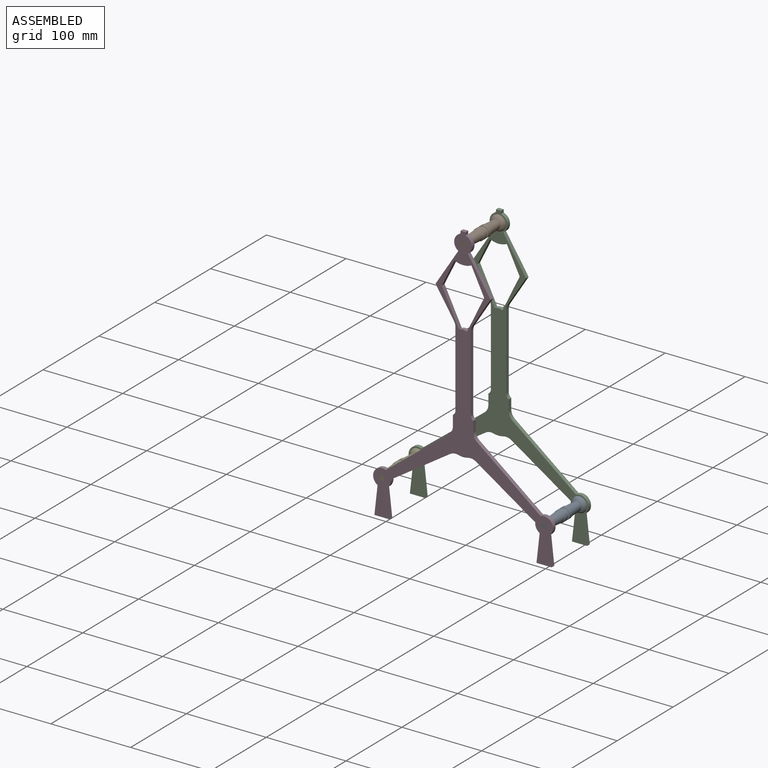
[diagram: assembled view]
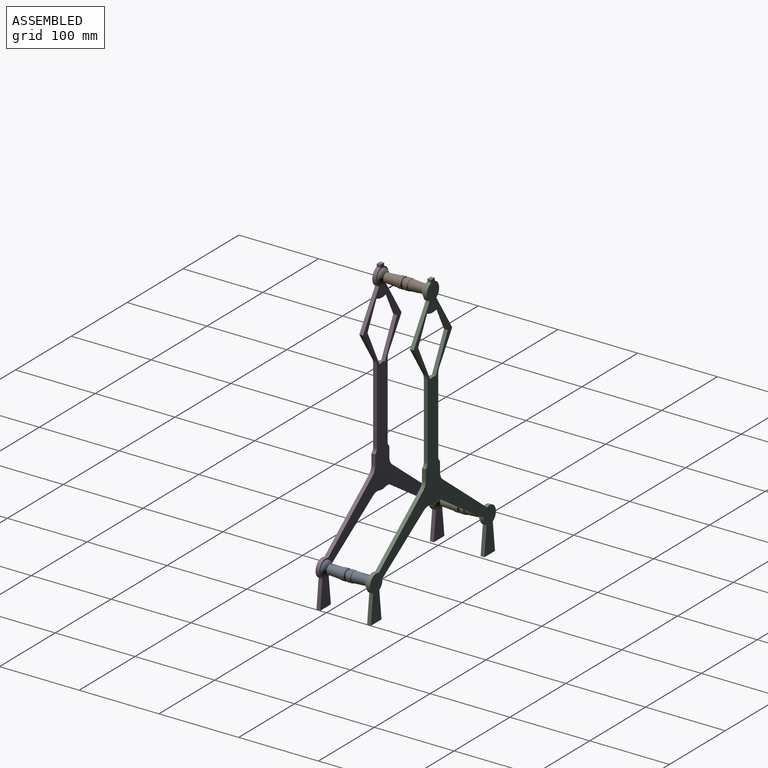
[diagram: assembled view, second angle]
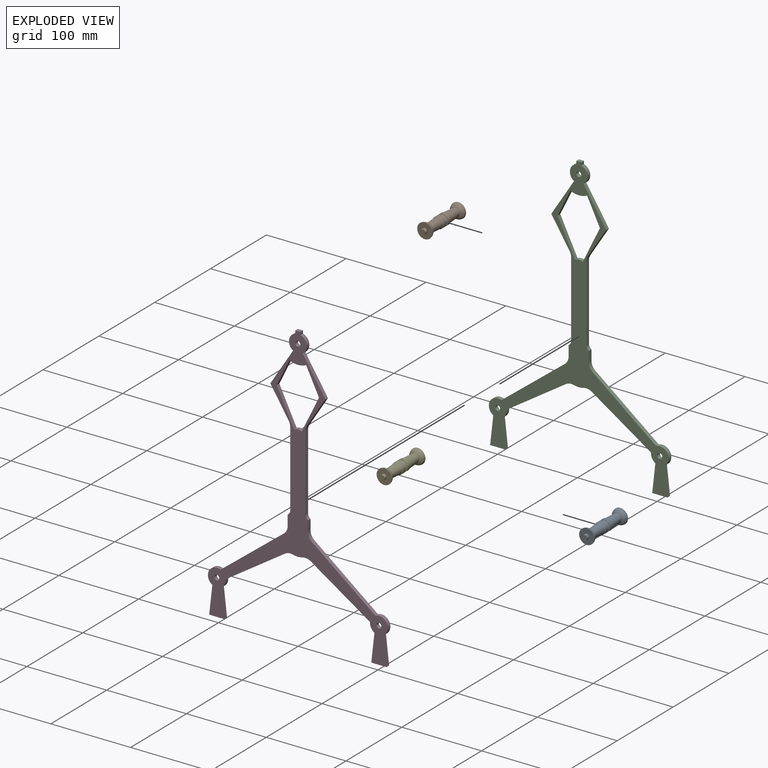
[diagram: exploded view]
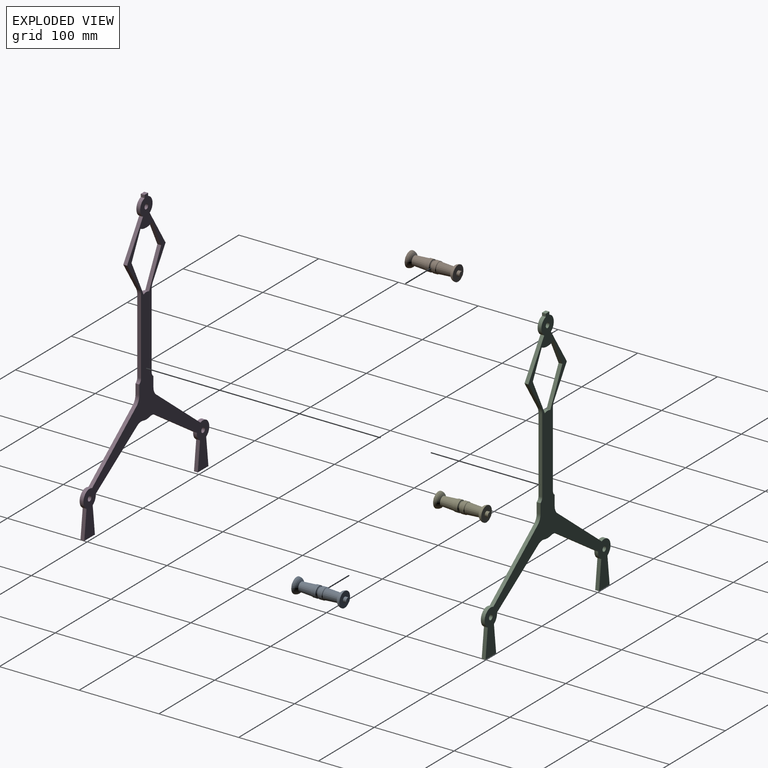
[diagram: exploded view, second angle]
ASSEMBLY  parts=5 mates=2
PART A: 15 faces, bbox 19.1x68.3x19.1 mm
  f0: plane 6.35x6.35mm, normal (0,1,0), area 31.7mm2, adj f1
  f1: cylinder r=3.17mm len=6.35mm, axis (0,-1,0), area 79.2mm2, adj f0,f2
  f2: plane 19.05x19.05mm, normal (0,1,0), area 253.4mm2, adj f1,f3
  f3: torus R=3.17mm, axis (0,-1,0), area 385.2mm2, adj f2,f4
  f4: cone r=6.57mm half-angle=3.4deg, axis (0,-1,0), area 658.7mm2, adj f3,f5
  f5: cone r=7.14mm half-angle=40.3deg, axis (0,-1,0), area 37.9mm2, adj f4,f6
  f6: cylinder r=7.14mm len=14.29mm, axis (0,-1,0), area 213.8mm2, adj f5,f7
  f7: torus R=7.14mm, axis (0,-1,0), area 192.2mm2, adj f6,f8
  f8: cylinder r=7.14mm len=14.29mm, axis (0,-1,0), area 213.8mm2, adj f7,f9
  f9: cone r=7.14mm half-angle=40.3deg, axis (0,1,0), area 37.9mm2, adj f8,f10
  f10: cone r=6.57mm half-angle=3.4deg, axis (0,1,0), area 658.7mm2, adj f9,f11
  f11: torus R=3.17mm, axis (0,-1,0), area 385.2mm2, adj f10,f12
  f12: plane 19.05x19.05mm, normal (0,-1,0), area 253.4mm2, adj f11,f13
  f13: cylinder r=3.17mm len=6.35mm, axis (0,-1,0), area 79.2mm2, adj f12,f14
  f14: plane 6.35x6.35mm, normal (0,-1,0), area 31.7mm2, adj f13
PART B: same geometry as A
PART C: 47 faces, bbox 225.4x4.8x350.8 mm
  f0: cylinder r=23.81mm len=21mm, axis (0,1,0), area 103.6mm2, adj f1,f43,f44,f45
  f1: plane 32.6x16.01mm, normal (-0.9,0,-0.44), area 173mm2, adj f0,f2,f44,f45
  f2: plane 44x21.61mm, normal (-0.9,0,0.44), area 233.5mm2, adj f1,f3,f44,f45
  f3: cylinder r=11.11mm len=9.8mm, axis (0,1,0), area 48.3mm2, adj f2,f4,f44,f45
  f4: plane 44x21.61mm, normal (0.9,0,0.44), area 233.5mm2, adj f3,f43,f44,f45
  f5: plane 6.35x4.76mm, normal (0,0,1), area 30.2mm2, adj f6,f42,f44,f45
  f6: plane 4.76x3.64mm, normal (-1,0,0), area 17.3mm2, adj f5,f7,f44,f45
  f7: cylinder r=11.11mm len=20.02mm, axis (0,1,0), area 120.9mm2, adj f6,f8,f44,f45
  f8: plane 44.61x28.47mm, normal (-0.84,0,0.54), area 252mm2, adj f7,f9,f44,f45
  f9: plane 35.93x22.93mm, normal (-0.84,0,-0.54), area 203mm2, adj f8,f10,f44,f45
  f10: cylinder r=12.7mm len=6.83mm, axis (0,1,0), area 34.4mm2, adj f9,f11,f44,f45
  f11: plane 94.62x4.76mm, normal (-1,0,0), area 450.6mm2, adj f10,f12,f44,f45
  f12: cylinder r=6.35mm len=5.5mm, axis (0,1,0), area 31.7mm2, adj f11,f13,f44,f45
  f13: plane 12.85x4.76mm, normal (-1,0,0), area 61.2mm2, adj f12,f14,f44,f45
  f14: cylinder r=12.7mm len=10mm, axis (0,1,0), area 54.8mm2, adj f13,f15,f44,f45
  f15: plane 79.46x62.28mm, normal (-0.62,0,0.79), area 480.8mm2, adj f14,f16,f44,f45
  f16: cylinder r=11.11mm len=20.74mm, axis (0,1,0), area 161mm2, adj f15,f17,f44,f45
  f17: plane 34.83x4.76mm, normal (-0.99,0,0.11), area 166.9mm2, adj f16,f18,f44,f45
  f18: plane 19.05x4.76mm, normal (0,0,-1), area 90.7mm2, adj f17,f19,f44,f45
  f19: plane 34.83x4.76mm, normal (0.99,0,0.11), area 166.9mm2, adj f18,f20,f44,f45
  f20: cylinder r=11.11mm len=10.73mm, axis (0,1,0), area 60.7mm2, adj f19,f21,f44,f45
  f21: plane 74.31x48.86mm, normal (0.55,0,-0.84), area 423.5mm2, adj f20,f22,f44,f45
  f22: cylinder r=12.7mm len=10.34mm, axis (0,1,0), area 51.4mm2, adj f21,f23,f44,f45
  f23: cylinder r=22.23mm len=11.78mm, axis (0,1,0), area 56.8mm2, adj f22,f24,f44,f45
  f24: cylinder r=12.7mm len=10.34mm, axis (0,1,0), area 51.4mm2, adj f23,f25,f44,f45
  f25: plane 74.31x48.86mm, normal (-0.55,0,-0.84), area 423.5mm2, adj f24,f26,f44,f45
  f26: cylinder r=11.11mm len=10.73mm, axis (0,1,0), area 60.7mm2, adj f25,f27,f44,f45
  f27: plane 34.83x4.76mm, normal (-0.99,0,0.11), area 166.9mm2, adj f26,f28,f44,f45
  f28: plane 19.05x4.76mm, normal (0,0,-1), area 90.7mm2, adj f27,f29,f44,f45
  f29: plane 34.83x4.76mm, normal (0.99,0,0.11), area 166.9mm2, adj f28,f30,f44,f45
  f30: cylinder r=11.11mm len=20.74mm, axis (0,1,0), area 161mm2, adj f29,f31,f44,f45
  f31: plane 79.46x62.28mm, normal (0.62,0,0.79), area 480.8mm2, adj f30,f32,f44,f45
  f32: cylinder r=12.7mm len=10mm, axis (0,1,0), area 54.8mm2, adj f31,f33,f44,f45
  f33: plane 12.85x4.76mm, normal (1,0,0), area 61.2mm2, adj f32,f34,f44,f45
  f34: cylinder r=6.35mm len=5.5mm, axis (0,1,0), area 31.7mm2, adj f33,f35,f44,f45
  f35: plane 94.62x4.76mm, normal (1,0,0), area 450.6mm2, adj f34,f36,f44,f45
  f36: cylinder r=12.7mm len=6.83mm, axis (0,1,0), area 34.4mm2, adj f35,f37,f44,f45
  f37: plane 35.93x22.93mm, normal (0.84,0,-0.54), area 203mm2, adj f36,f38,f44,f45
  f38: plane 44.61x28.47mm, normal (0.84,0,0.54), area 252mm2, adj f37,f39,f44,f45
  f39: cylinder r=11.11mm len=20.02mm, axis (0,1,0), area 120.9mm2, adj f38,f42,f44,f45
  f40: cylinder r=3.17mm len=6.35mm, axis (0,1,0), area 95mm2, adj f44,f45
  f41: cylinder r=3.17mm len=6.35mm, axis (0,1,0), area 95mm2, adj f44,f45
  f42: plane 4.76x3.64mm, normal (1,0,0), area 17.3mm2, adj f5,f39,f44,f45
  f43: plane 32.6x16.01mm, normal (0.9,0,-0.44), area 173mm2, adj f0,f4,f44,f45
  f44: plane 350.84x225.43mm, normal (0,-1,0), area 9222.6mm2, adj f0,f1,f2,f3,f4,f5,f6,f7
  f45: plane 350.84x225.43mm, normal (0,1,0), area 9222.6mm2, adj f0,f1,f2,f3,f4,f5,f6,f7
  f46: cylinder r=3.17mm len=6.35mm, axis (0,1,0), area 95mm2, adj f44,f45
PART D: same geometry as C
PART E: same geometry as A
PLACE A t=(101.6,-79.7,44.45)mm
PLACE B t=(0,-79.7,336.55)mm
PLACE C t=(0,63.5,0)mm
PLACE D at identity fixed
PLACE E t=(-101.6,-79.7,44.45)mm
MATE fastened E.f1 <-> D.f16  axis (0,-1,0) through (-101.6,-4.76,44.45)mm
MATE fastened C.f26 <-> A.f1  axis (0,1,0) through (101.6,63.5,44.45)mm
